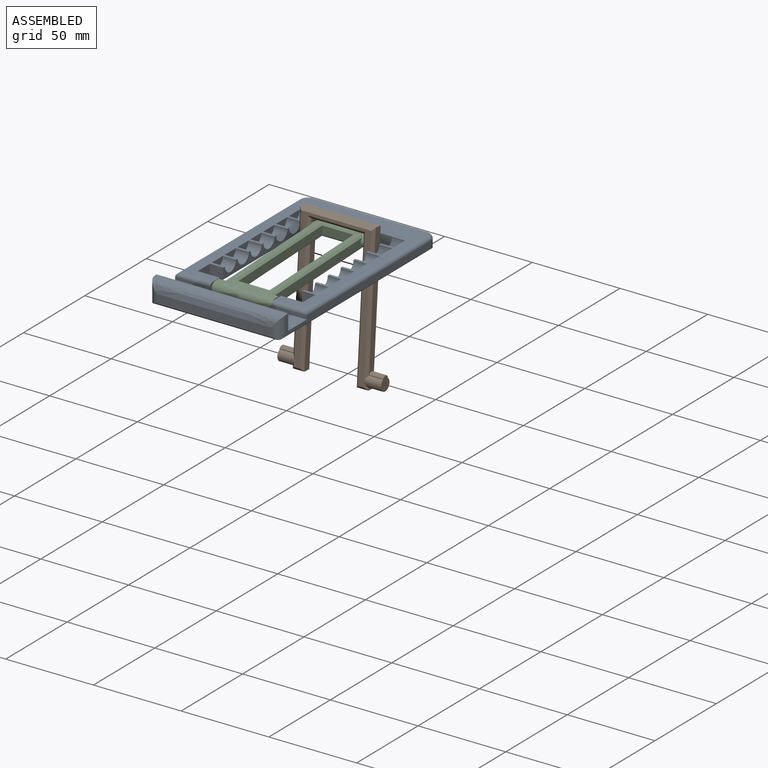
[diagram: assembled view]
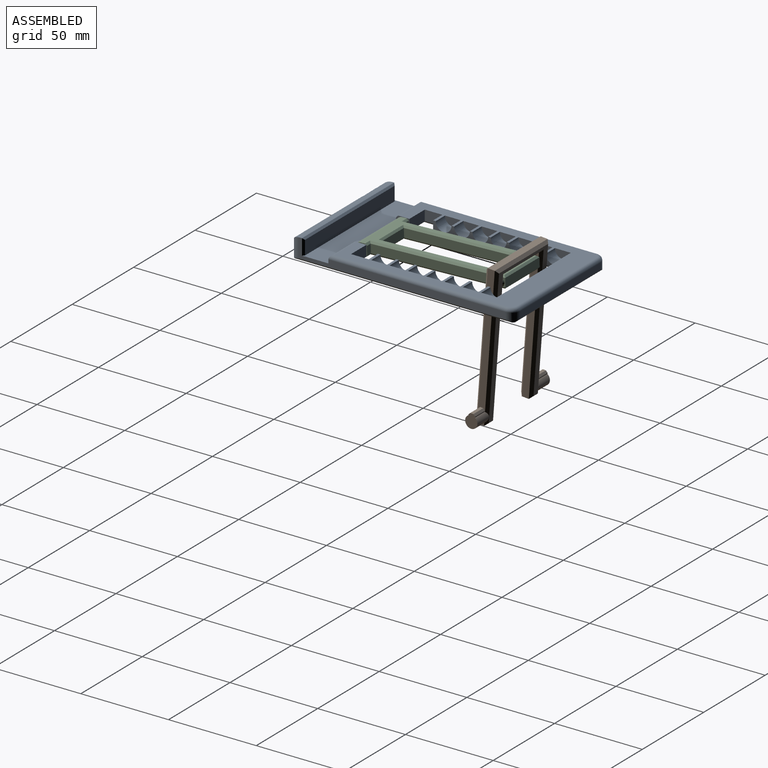
[diagram: assembled view, second angle]
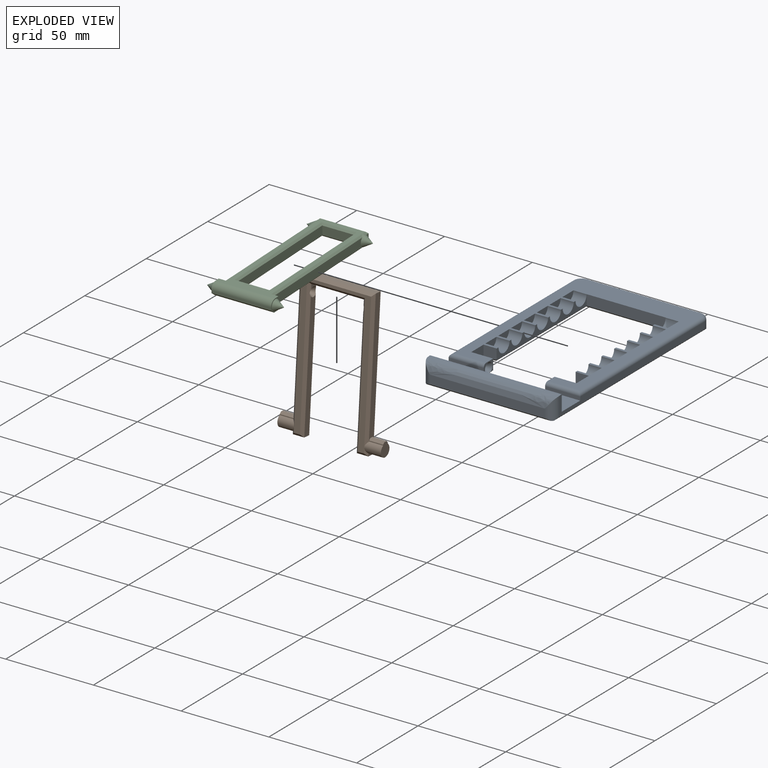
[diagram: exploded view]
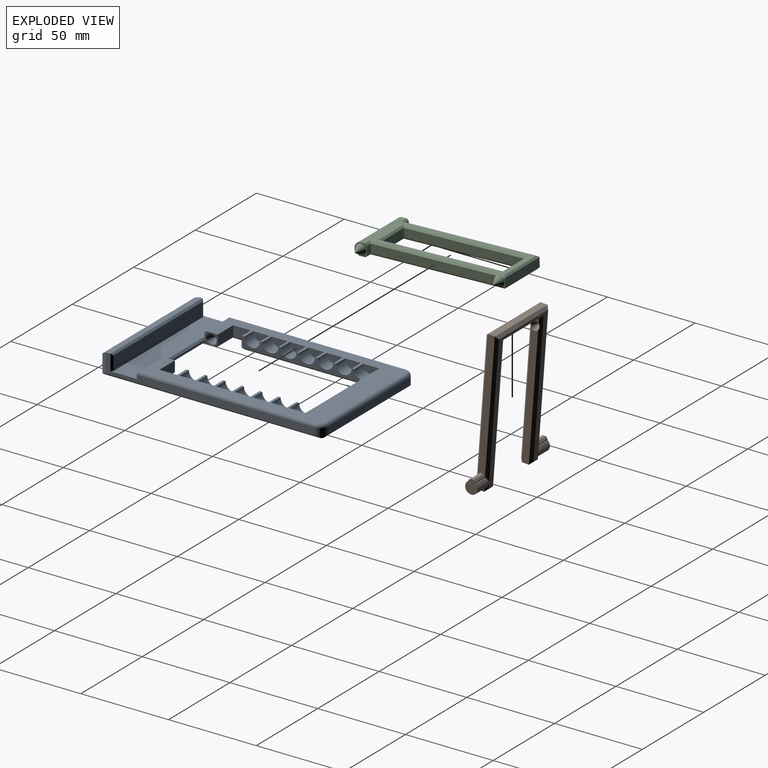
[diagram: exploded view, second angle]
ASSEMBLY  parts=3 mates=2
PART A: 87 faces, bbox 75.8x128.4x12 mm
  f0: plane 9x4.5mm, normal (-1,0,0), area 31.8mm2, adj f1,f12
  f1: cylinder r=4.5mm len=9mm, axis (-1,0,0), area 106mm2, adj f0,f12,f34
  f2: plane 9x4.5mm, normal (-1,0,0), area 31.8mm2, adj f3,f12
  f3: cylinder r=4.5mm len=9mm, axis (-1,0,0), area 106mm2, adj f2,f12,f34
  f4: plane 9x4.5mm, normal (-1,0,0), area 31.8mm2, adj f5,f12
  f5: cylinder r=4.5mm len=9mm, axis (-1,0,0), area 106mm2, adj f4,f12,f34
  f6: plane 9x4.5mm, normal (-1,0,0), area 31.8mm2, adj f7,f12
  f7: cylinder r=4.5mm len=9mm, axis (-1,0,0), area 106mm2, adj f6,f12,f34
  f8: plane 9x4.5mm, normal (-1,0,0), area 31.8mm2, adj f9,f12
  f9: cylinder r=4.5mm len=9mm, axis (-1,0,0), area 106mm2, adj f8,f12,f34
  f10: plane 9x4.5mm, normal (-1,0,0), area 31.8mm2, adj f11,f12
  f11: cylinder r=4.5mm len=9mm, axis (-1,0,0), area 106mm2, adj f10,f12,f34
  f12: plane 102x71mm, normal (0,0,1), area 2195.2mm2, adj f0,f1,f2,f3,f4,f5,f6,f7
  f13: plane 9x4.5mm, normal (1,0,0), area 31.8mm2, adj f12,f14
  f14: cylinder r=4.5mm len=9mm, axis (1,0,0), area 106mm2, adj f12,f13,f25
  f15: plane 9x4.5mm, normal (1,0,0), area 31.8mm2, adj f12,f16
  f16: cylinder r=4.5mm len=9mm, axis (1,0,0), area 106mm2, adj f12,f15,f25
  f17: plane 9x4.5mm, normal (1,0,0), area 31.8mm2, adj f12,f18
  f18: cylinder r=4.5mm len=9mm, axis (1,0,0), area 106mm2, adj f12,f17,f25
  f19: plane 9x4.5mm, normal (1,0,0), area 31.8mm2, adj f12,f20
  f20: cylinder r=4.5mm len=9mm, axis (1,0,0), area 106mm2, adj f12,f19,f25
  f21: plane 9x4.5mm, normal (1,0,0), area 31.8mm2, adj f12,f22
  f22: cylinder r=4.5mm len=9mm, axis (1,0,0), area 106mm2, adj f12,f21,f25
  f23: plane 9x4.5mm, normal (1,0,0), area 31.8mm2, adj f12,f24
  f24: cylinder r=4.5mm len=9mm, axis (1,0,0), area 106mm2, adj f12,f23,f25
  f25: plane 73.29x6mm, normal (1,0,0), area 217.1mm2, adj f12,f14,f16,f18,f20,f22,f24,f32
  f26: plane 118x11mm, normal (1,0,0), area 456mm2, adj f39,f43,f46,f51,f58,f60,f77,f78
  f27: plane 118x11mm, normal (-1,0,0), area 456mm2, adj f28,f43,f46,f51,f57,f63,f76,f79
  f28: plane 20x2mm, normal (0,-1,0), area 40mm2, adj f27,f29,f43,f80
  f29: plane 8.71x6mm, normal (1,0,0), area 18.9mm2, adj f12,f28,f30,f42,f43,f50,f56,f74
  f30: plane 12.5x6mm, normal (0,1,0), area 75mm2, adj f12,f29,f31,f72
  f31: plane 10x6mm, normal (1,0,0), area 60mm2, adj f12,f30,f32,f70
  f32: plane 7.5x6mm, normal (0,-1,0), area 45mm2, adj f12,f25,f31,f68
  f33: plane 45x6mm, normal (0,-1,0), area 270mm2, adj f12,f25,f34,f64
  f34: plane 73.29x6mm, normal (-1,0,0), area 217.1mm2, adj f1,f3,f5,f7,f9,f11,f12,f33
  f35: plane 7.5x6mm, normal (0,-1,0), area 45mm2, adj f12,f34,f36,f67
  f36: plane 10x6mm, normal (-1,0,0), area 60mm2, adj f12,f35,f37,f69
  f37: plane 12.5x6mm, normal (0,1,0), area 75mm2, adj f12,f36,f38,f71
  f38: plane 8.71x6mm, normal (-1,0,0), area 18.9mm2, adj f12,f37,f39,f42,f43,f47,f56,f73
  f39: plane 20x2mm, normal (0,-1,0), area 40mm2, adj f26,f38,f43,f82
  f40: plane 65x4mm, normal (0,1,0), area 260mm2, adj f61,f78,f79,f85
  f41: plane 126x73mm, normal (0,0,-1), area 4722.3mm2, adj f60,f61,f62,f63,f64,f65,f66,f67
  f42: plane 35x1mm, normal (0,1,0), area 35mm2, adj f29,f38,f56,f75
  f43: plane 75x15mm, normal (0,0,1), area 1016mm2, adj f26,f27,f28,f29,f38,f39,f44,f56
  f44: plane 73x8mm, normal (0,1,0), area 584mm2, adj f43,f57,f58,f59
  f45: plane 65x5mm, normal (0,-1,0), area 325mm2, adj f51,f62,f76,f77
  f46: plane 75x1.05mm, normal (0,0,1), area 78.7mm2, adj f26,f27,f51,f59
  f47: cone r=0.21mm half-angle=31deg, axis (-1,0,0), area 53.5mm2, adj f38,f48,f73
  f48: plane 0.43x0.43mm, normal (-1,0,0), area 0.1mm2, adj f47
  f49: plane 0.43x0.43mm, normal (1,0,0), area 0.1mm2, adj f50
  f50: cone r=0.21mm half-angle=31deg, axis (1,0,0), area 53.5mm2, adj f29,f49,f74
  f51: extruded ~75x6mm, area 680.4mm2, adj f26,f27,f45,f46,f76,f77
  f52: plane 9x4.5mm, normal (1,0,0), area 31.8mm2, adj f12,f53
  f53: cylinder r=4.5mm len=9mm, axis (1,0,0), area 106mm2, adj f12,f25,f52
  f54: plane 9x4.5mm, normal (-1,0,0), area 31.8mm2, adj f12,f55
  f55: cylinder r=4.5mm len=9mm, axis (-1,0,0), area 106mm2, adj f12,f34,f54
  f56: plane 35x1mm, normal (0,0.71,0.71), area 49.5mm2, adj f29,f38,f42,f43
  f57: plane 9x1mm, normal (-0.71,0.71,0), area 12mm2, adj f27,f43,f44,f59
  f58: plane 9x1mm, normal (0.71,0.71,0), area 12mm2, adj f26,f43,f44,f59
  f59: plane 75x1mm, normal (0,0.71,0.71), area 104.7mm2, adj f44,f46,f57,f58
  f60: plane 124x1mm, normal (0.71,0,-0.71), area 172.7mm2, adj f26,f41,f77,f78
  f61: plane 71x1mm, normal (0,0.71,-0.71), area 97.7mm2, adj f40,f41,f78,f79
  f62: plane 71x1mm, normal (0,-0.71,-0.71), area 97.7mm2, adj f41,f45,f76,f77
  f63: plane 124x1mm, normal (-0.71,0,-0.71), area 172.7mm2, adj f27,f41,f76,f79
  f64: plane 47x1mm, normal (0,-0.71,-0.71), area 65.1mm2, adj f33,f41,f65,f66
  f65: plane 74.29x1mm, normal (-0.71,0,-0.71), area 103.6mm2, adj f34,f41,f64,f67
  f66: plane 74.29x1mm, normal (0.71,0,-0.71), area 103.6mm2, adj f25,f41,f64,f68
  f67: plane 8.5x1mm, normal (0,-0.71,-0.71), area 10.6mm2, adj f35,f41,f65,f69
  f68: plane 8.5x1mm, normal (0,-0.71,-0.71), area 10.6mm2, adj f32,f41,f66,f70
  f69: plane 12x1mm, normal (-0.71,0,-0.71), area 15.6mm2, adj f36,f41,f67,f71
  f70: plane 12x1mm, normal (0.71,0,-0.71), area 15.6mm2, adj f31,f41,f68,f72
  f71: plane 13.5x1mm, normal (0,0.71,-0.71), area 17.7mm2, adj f37,f41,f69,f73
  f72: plane 13.5x1mm, normal (0,0.71,-0.71), area 17.7mm2, adj f30,f41,f70,f74
  f73: plane 8.71x1mm, normal (-0.71,0,-0.71), area 9.9mm2, adj f38,f41,f47,f71,f75
  f74: plane 8.71x1mm, normal (0.71,0,-0.71), area 9.9mm2, adj f29,f41,f50,f72,f75
  f75: plane 37x1mm, normal (0,0.71,-0.71), area 50.9mm2, adj f41,f42,f73,f74
  f76: cylinder r=5mm len=11.9mm, axis (0,0,-1), area 71.4mm2, adj f27,f41,f45,f51,f62,f63
  f77: cylinder r=5mm len=11.9mm, axis (0,0,1), area 71.4mm2, adj f26,f41,f45,f51,f60,f62
  f78: cylinder r=5mm len=5mm, axis (0,0,1), area 35mm2, adj f26,f40,f41,f60,f61,f86
  f79: cylinder r=5mm len=5mm, axis (0,0,-1), area 35mm2, adj f27,f40,f41,f61,f63,f83
  f80: cylinder r=2mm len=20mm, axis (-1,0,0), area 60.5mm2, adj f12,f28,f29,f81
  f81: cylinder r=2mm len=101mm, axis (0,1,0), area 315mm2, adj f12,f27,f80,f83
  f82: cylinder r=2mm len=20mm, axis (-1,0,0), area 60.5mm2, adj f12,f38,f39,f84
  f83: torus R=3mm, axis (0,0,1), area 21.1mm2, adj f12,f79,f81,f85
  f84: cylinder r=2mm len=101mm, axis (0,-1,0), area 315mm2, adj f12,f26,f82,f86
  f85: cylinder r=2mm len=65mm, axis (1,0,0), area 204.2mm2, adj f12,f40,f83,f86
  f86: torus R=3mm, axis (0,0,1), area 21.1mm2, adj f12,f78,f84,f85
PART B: 52 faces, bbox 59x81.8x7 mm
  f0: plane 4x2.75mm, normal (1,0,0), area 8.5mm2, adj f8,f18,f36,f46
  f1: plane 70.89x4mm, normal (-1,0,0), area 281mm2, adj f10,f17,f32,f42
  f2: plane 8x1.77mm, normal (0,1,0), area 14.1mm2, adj f3,f13,f48,f49
  f3: plane 8x7mm, normal (-1,0,0), area 41.9mm2, adj f2,f25,f26,f27,f48,f49
  f4: plane 6.55x4mm, normal (0,-1,0), area 26.2mm2, adj f7,f24,f37,f47
  f5: plane 8x7mm, normal (1,0,0), area 41.9mm2, adj f6,f20,f21,f22,f50,f51
  f6: plane 8x1.77mm, normal (0,1,0), area 14.1mm2, adj f5,f11,f50,f51
  f7: plane 70.89x4mm, normal (1,0,0), area 281mm2, adj f4,f18,f36,f46
  f8: plane 29.91x4mm, normal (0,-1,0), area 119.6mm2, adj f0,f9,f34,f44
  f9: plane 4x2.75mm, normal (-1,0,0), area 8.5mm2, adj f8,f17,f32,f42
  f10: plane 6.55x4mm, normal (0,-1,0), area 26.2mm2, adj f1,f23,f30,f40
  f11: plane 74.42x4mm, normal (1,0,0), area 292.5mm2, adj f6,f12,f20,f21,f22,f29,f39,f50
  f12: plane 43x4mm, normal (0,1,0), area 172mm2, adj f11,f13,f31,f41
  f13: plane 74.42x4mm, normal (-1,0,0), area 292.5mm2, adj f2,f12,f25,f26,f27,f33,f43,f48
  f14: plane 78.79x40mm, normal (0,0,1), area 613.2mm2, adj f28,f29,f30,f31,f32,f33,f34,f35
  f15: plane 78.79x40mm, normal (0,0,-1), area 613.2mm2, adj f38,f39,f40,f41,f42,f43,f44,f45
  f16: plane 0.43x0.43mm, normal (-1,0,0), area 0.1mm2, adj f17
  f17: cone r=3.17mm half-angle=30.6deg, axis (-1,0,0), area 40.9mm2, adj f1,f9,f16,f32,f42
  f18: cone r=3.17mm half-angle=30.6deg, axis (1,0,0), area 40.9mm2, adj f0,f7,f19,f36,f46
  f19: plane 0.43x0.43mm, normal (1,0,0), area 0.1mm2, adj f18
  f20: plane 8x0.55mm, normal (0,0,-1), area 4.4mm2, adj f5,f11,f22,f50
  f21: plane 8x0.55mm, normal (0,0,1), area 4.4mm2, adj f5,f11,f22,f51
  f22: cylinder r=3.5mm len=9.5mm, axis (1,0,0), area 157.4mm2, adj f5,f11,f20,f21,f23,f28,f29,f38
  f23: plane 4x1.63mm, normal (1,0,0), area 4.8mm2, adj f10,f22,f28,f38
  f24: plane 4x1.63mm, normal (-1,0,0), area 4.8mm2, adj f4,f25,f35,f45
  f25: cylinder r=3.5mm len=9.5mm, axis (-1,0,0), area 157.4mm2, adj f3,f13,f24,f26,f27,f33,f35,f43
  f26: plane 8x0.55mm, normal (0,0,-1), area 4.4mm2, adj f3,f13,f25,f49
  f27: plane 8x0.55mm, normal (0,0,1), area 4.4mm2, adj f3,f13,f25,f48
  f28: plane 4.5x1.5mm, normal (0.71,0,0.71), area 3.7mm2, adj f14,f22,f23,f30
  f29: plane 77.29x1.5mm, normal (0.71,0,0.71), area 158.1mm2, adj f11,f14,f22,f31
  f30: plane 6.55x1.5mm, normal (0,-0.71,0.71), area 10.7mm2, adj f10,f14,f28,f32
  f31: plane 43x1.5mm, normal (0,0.71,0.71), area 88mm2, adj f12,f14,f29,f33
  f32: plane 78.63x1.5mm, normal (-0.71,0,0.71), area 162.3mm2, adj f1,f9,f14,f17,f30,f34
  f33: plane 77.29x1.5mm, normal (-0.71,0,0.71), area 158.1mm2, adj f13,f14,f25,f31
  f34: plane 32.91x1.5mm, normal (0,-0.71,0.71), area 66.6mm2, adj f8,f14,f32,f36
  f35: plane 4.5x1.5mm, normal (-0.71,0,0.71), area 3.7mm2, adj f14,f24,f25,f37
  f36: plane 78.63x1.5mm, normal (0.71,0,0.71), area 162.3mm2, adj f0,f7,f14,f18,f34,f37
  f37: plane 6.55x1.5mm, normal (0,-0.71,0.71), area 10.7mm2, adj f4,f14,f35,f36
  f38: plane 4.5x1.5mm, normal (0.71,0,-0.71), area 3.7mm2, adj f15,f22,f23,f40
  f39: plane 77.29x1.5mm, normal (0.71,0,-0.71), area 158.1mm2, adj f11,f15,f22,f41
  f40: plane 6.55x1.5mm, normal (0,-0.71,-0.71), area 10.7mm2, adj f10,f15,f38,f42
  f41: plane 43x1.5mm, normal (0,0.71,-0.71), area 88mm2, adj f12,f15,f39,f43
  f42: plane 78.63x1.5mm, normal (-0.71,0,-0.71), area 162.3mm2, adj f1,f9,f15,f17,f40,f44
  f43: plane 77.29x1.5mm, normal (-0.71,0,-0.71), area 158.1mm2, adj f13,f15,f25,f41
  f44: plane 32.91x1.5mm, normal (0,-0.71,-0.71), area 66.6mm2, adj f8,f15,f42,f46
  f45: plane 4.5x1.5mm, normal (-0.71,0,-0.71), area 3.7mm2, adj f15,f24,f25,f47
  f46: plane 78.63x1.5mm, normal (0.71,0,-0.71), area 162.3mm2, adj f0,f7,f15,f18,f44,f47
  f47: plane 6.55x1.5mm, normal (0,-0.71,-0.71), area 10.7mm2, adj f4,f15,f45,f46
  f48: plane 8x1mm, normal (0,0.71,0.71), area 11.3mm2, adj f2,f3,f13,f27
  f49: plane 8x1mm, normal (0,0.71,-0.71), area 11.3mm2, adj f2,f3,f13,f26
  f50: plane 8x1mm, normal (0,0.71,-0.71), area 11.3mm2, adj f5,f6,f11,f20
  f51: plane 8x1mm, normal (0,0.71,0.71), area 11.3mm2, adj f5,f6,f11,f21
PART C: 44 faces, bbox 44x83.9x7.1 mm
  f0: plane 73.64x1mm, normal (-0.71,0,0.71), area 102.6mm2, adj f16,f18,f21,f38
  f1: plane 73.64x1mm, normal (0.71,0,0.71), area 102.6mm2, adj f5,f18,f22,f37
  f2: plane 73.64x1mm, normal (-0.71,0,-0.71), area 102.6mm2, adj f16,f19,f21,f36
  f3: plane 73.64x1mm, normal (0.71,0,-0.71), area 102.6mm2, adj f5,f19,f22,f32
  f4: plane 5x1.92mm, normal (-1,0,0), area 4.7mm2, adj f15,f21,f35,f40
  f5: plane 71.65x5mm, normal (1,0,0), area 353.4mm2, adj f1,f3,f13,f22
  f6: plane 68.84x5mm, normal (1,0,0), area 344.2mm2, adj f7,f17,f25,f29
  f7: plane 17.91x5mm, normal (0,-1,0), area 89.5mm2, adj f6,f8,f27,f28
  f8: plane 68.84x5mm, normal (-1,0,0), area 344.2mm2, adj f7,f17,f26,f30
  f9: plane 5x3.05mm, normal (0,1,0), area 15.2mm2, adj f10,f16,f36,f38
  f10: plane 7.12x7mm, normal (-1,0,0), area 15.5mm2, adj f9,f11,f18,f19,f20,f36,f38,f42
  f11: plane 34x1.5mm, normal (0,-1,0), area 51mm2, adj f10,f12,f42,f43
  f12: plane 7.12x7mm, normal (1,0,0), area 15.5mm2, adj f11,f13,f18,f19,f23,f32,f37,f42
  f13: plane 5x3.05mm, normal (0,1,0), area 15.2mm2, adj f5,f12,f32,f37
  f14: plane 5x1.92mm, normal (1,0,0), area 4.7mm2, adj f15,f22,f33,f39
  f15: plane 27.91x5mm, normal (0,1,0), area 139.5mm2, adj f4,f14,f34,f41
  f16: plane 71.65x5mm, normal (-1,0,0), area 353.4mm2, adj f0,f2,f9,f21
  f17: plane 17.91x5mm, normal (0,1,0), area 89.5mm2, adj f6,f8,f24,f31
  f18: plane 79.34x34mm, normal (0,0,1), area 666.6mm2, adj f0,f1,f10,f12,f21,f22,f28,f29
  f19: plane 80.46x34mm, normal (0,0,-1), area 704.5mm2, adj f2,f3,f10,f12,f21,f22,f24,f25
  f20: cone r=3mm half-angle=31deg, axis (1,0,0), area 55mm2, adj f10
  f21: cone r=2.96mm half-angle=30.6deg, axis (1,0,0), area 59.6mm2, adj f0,f2,f4,f16,f18,f19,f35,f40
  f22: cone r=2.96mm half-angle=30.6deg, axis (-1,0,0), area 59.6mm2, adj f1,f3,f5,f14,f18,f19,f33,f39
  f23: cone r=3mm half-angle=31deg, axis (-1,0,0), area 55mm2, adj f12
  f24: plane 19.91x1mm, normal (0,0.71,-0.71), area 26.7mm2, adj f17,f19,f25,f26
  f25: plane 70.84x1mm, normal (0.71,0,-0.71), area 98.8mm2, adj f6,f19,f24,f27
  f26: plane 70.84x1mm, normal (-0.71,0,-0.71), area 98.8mm2, adj f8,f19,f24,f27
  f27: plane 19.91x1mm, normal (0,-0.71,-0.71), area 26.7mm2, adj f7,f19,f25,f26
  f28: plane 19.91x1mm, normal (0,-0.71,0.71), area 26.7mm2, adj f7,f18,f29,f30
  f29: plane 70.84x1mm, normal (0.71,0,0.71), area 98.8mm2, adj f6,f18,f28,f31
  f30: plane 70.84x1mm, normal (-0.71,0,0.71), area 98.8mm2, adj f8,f18,f28,f31
  f31: plane 19.91x1mm, normal (0,0.71,0.71), area 26.7mm2, adj f17,f18,f29,f30
  f32: plane 4.05x1mm, normal (0,0.71,-0.71), area 5mm2, adj f3,f12,f13,f19
  f33: plane 2.91x1mm, normal (0.71,0,-0.71), area 2.5mm2, adj f14,f19,f22,f34
  f34: plane 27.91x1mm, normal (0,0.71,-0.71), area 38.1mm2, adj f15,f19,f33,f35
  f35: plane 2.91x1mm, normal (-0.71,0,-0.71), area 2.5mm2, adj f4,f19,f21,f34
  f36: plane 4.05x1mm, normal (0,0.71,-0.71), area 5mm2, adj f2,f9,f10,f19
  f37: plane 4.05x1mm, normal (0,0.71,0.71), area 5mm2, adj f1,f12,f13,f18
  f38: plane 4.05x1mm, normal (0,0.71,0.71), area 5mm2, adj f0,f9,f10,f18
  f39: plane 2.91x1mm, normal (0.71,0,0.71), area 2.5mm2, adj f14,f18,f22,f41
  f40: plane 2.91x1mm, normal (-0.71,0,0.71), area 2.5mm2, adj f4,f18,f21,f41
  f41: plane 27.91x1mm, normal (0,0.71,0.71), area 38.1mm2, adj f15,f18,f39,f40
  f42: cylinder r=3.5mm len=34mm, axis (-1,0,0), area 186.9mm2, adj f10,f11,f12,f18
  f43: plane 34x2.38mm, normal (0,-0.64,-0.77), area 105.8mm2, adj f10,f11,f12,f19
PLACE A t=(-7.45,5.08,-8.84)mm fixed
PLACE B rot(axis=(1,0,0),85.7deg) t=(-7.7,34.28,-30.54)mm
PLACE C rot(axis=(1,0,0),2.1deg) t=(-7.58,5.17,-7.04)mm
MATE revolute C.f21 <-> B.f17  axis (-1,0,0) through (11.38,32.87,-2.51)mm
MATE revolute A.f47 <-> C.f20  axis (1,0,0) through (-29.58,-43.87,-5.34)mm
